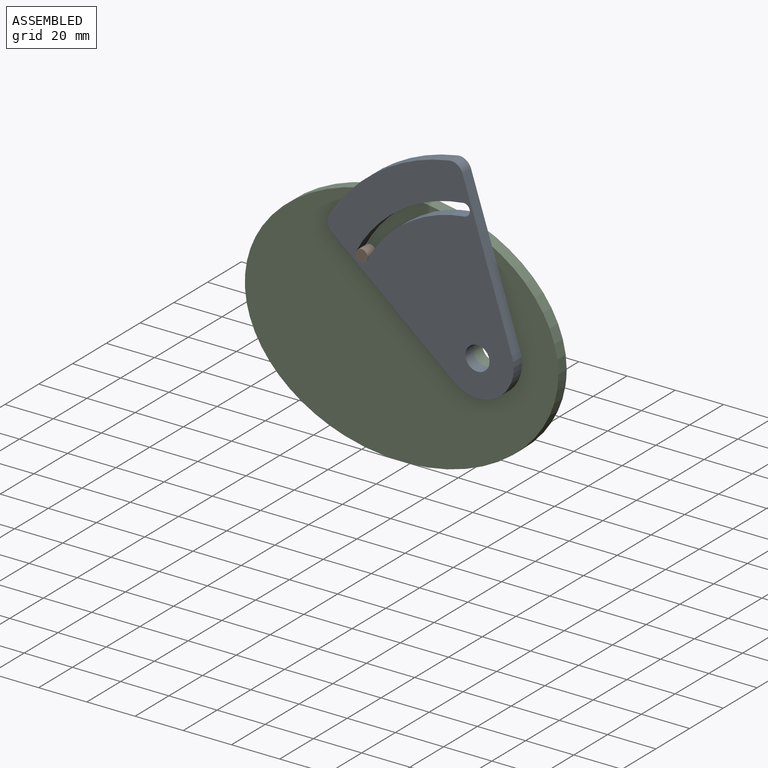
[diagram: assembled view]
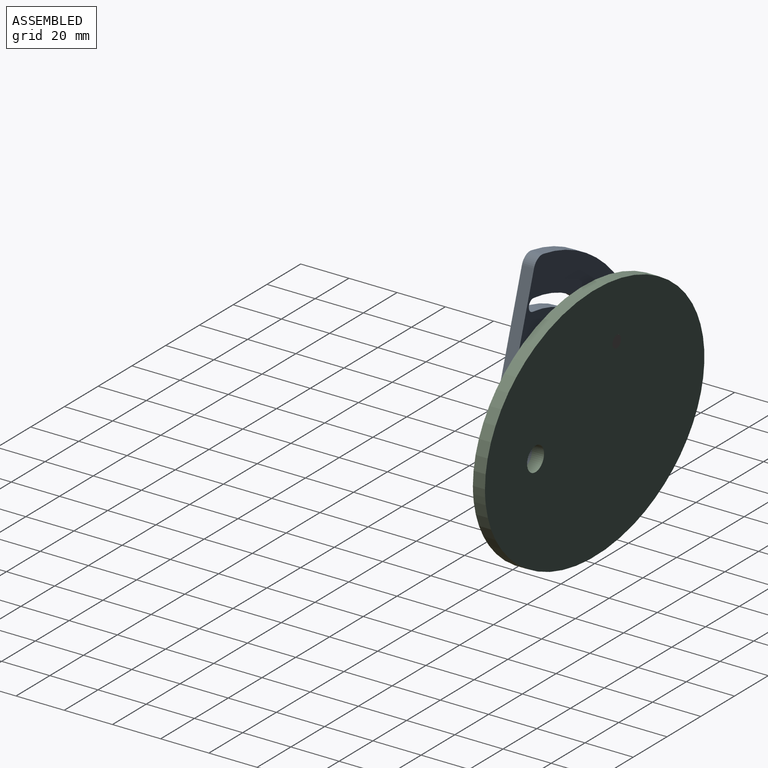
[diagram: assembled view, second angle]
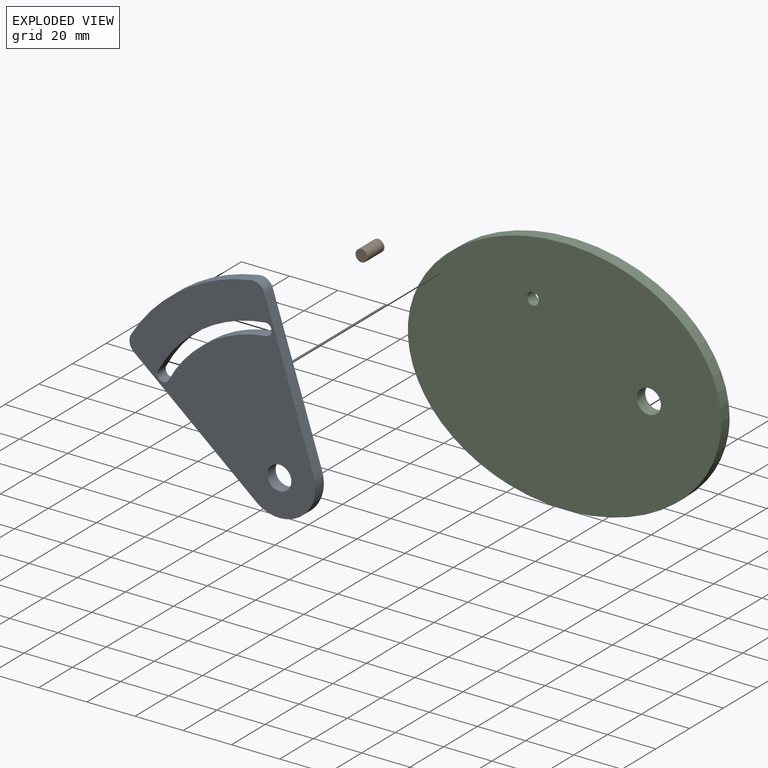
[diagram: exploded view]
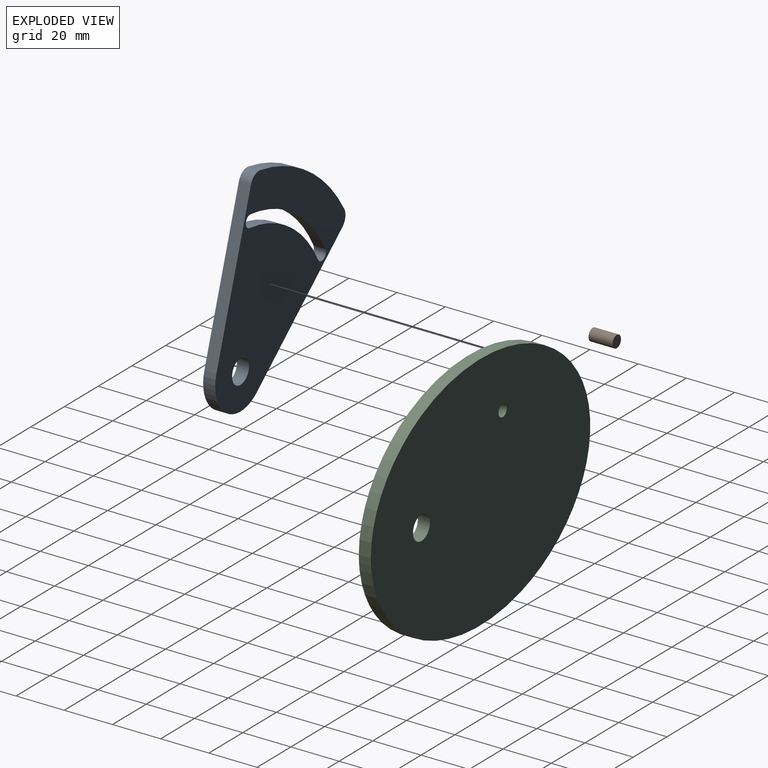
[diagram: exploded view, second angle]
ASSEMBLY  parts=3 mates=4
PART A: 13 faces, bbox 87x5x65.7 mm
  f0: cylinder r=2.5mm len=5mm, axis (0,1,0), area 39.3mm2, adj f1,f8,f11,f12
  f1: cylinder r=52mm len=48.86mm, axis (0,1,0), area 254.3mm2, adj f0,f2,f11,f12
  f2: cylinder r=2.5mm len=5mm, axis (0,1,0), area 39.3mm2, adj f1,f8,f11,f12
  f3: plane 63.68x18.26mm, normal (0.28,0,0.96), area 331.2mm2, adj f4,f9,f11,f12
  f4: cylinder r=5mm len=5.93mm, axis (0,1,0), area 35.5mm2, adj f3,f5,f11,f12
  f5: cylinder r=72mm len=59.91mm, axis (0,1,0), area 308.9mm2, adj f4,f6,f11,f12
  f6: cylinder r=5mm len=5.93mm, axis (0,1,0), area 35.5mm2, adj f5,f7,f11,f12
  f7: plane 63.68x18.26mm, normal (0.28,0,-0.96), area 331.2mm2, adj f6,f9,f11,f12
  f8: cylinder r=57mm len=53.56mm, axis (0,1,0), area 278.8mm2, adj f0,f2,f11,f12
  f9: cylinder r=15mm len=28.84mm, axis (0,1,0), area 193.7mm2, adj f3,f7,f11,f12
  f10: cylinder r=5mm len=10mm, axis (0,1,0), area 157.1mm2, adj f11,f12
  f11: plane 87x65.75mm, normal (0,-1,0), area 3510.6mm2, adj f0,f1,f2,f3,f4,f5,f6,f7
  f12: plane 87x65.75mm, normal (0,1,0), area 3510.6mm2, adj f0,f1,f2,f3,f4,f5,f6,f7
PART B: 3 faces, bbox 5x10x5 mm
  f0: cylinder r=2.5mm len=10mm, axis (0,1,0), area 157.1mm2, adj f1,f2
  f1: plane 5x5mm, normal (0,-1,0), area 19.6mm2, adj f0
  f2: plane 5x5mm, normal (0,1,0), area 19.6mm2, adj f0
PART C: 5 faces, bbox 130x5x100 mm
  f0: cylinder r=2.5mm len=5mm, axis (0,1,0), area 78.5mm2, adj f3,f4
  f1: extruded ~130x100mm, area 1814.1mm2, adj f3,f4
  f2: cylinder r=5mm len=10mm, axis (0,1,0), area 157.1mm2, adj f3,f4
  f3: plane 130x100mm, normal (0,-1,0), area 10112mm2, adj f0,f1,f2
  f4: plane 130x100mm, normal (0,1,0), area 10112mm2, adj f0,f1,f2
PLACE A rot(axis=(0,1,0),56deg) t=(15.44,0,29.02)mm
PLACE B rot(axis=(0,-1,0),176.1deg) t=(-24.43,0,52.05)mm
PLACE C rot(axis=(0,1,0),0deg) t=(0,0,0)mm
MATE revolute C.f2 <-> A.f1  axis (0,-1,0) through (35,-5,0)mm
MATE cylindrical B.f0 <-> C.f0  axis (0,1,0) through (-13.11,0,25.61)mm
MATE planar C.f3 <-> A.f12  axis (0,-1,0) through (0,-5,0)mm
MATE planar B.f0 <-> C.f0  axis (0,1,0) through (-13.11,0,25.61)mm
